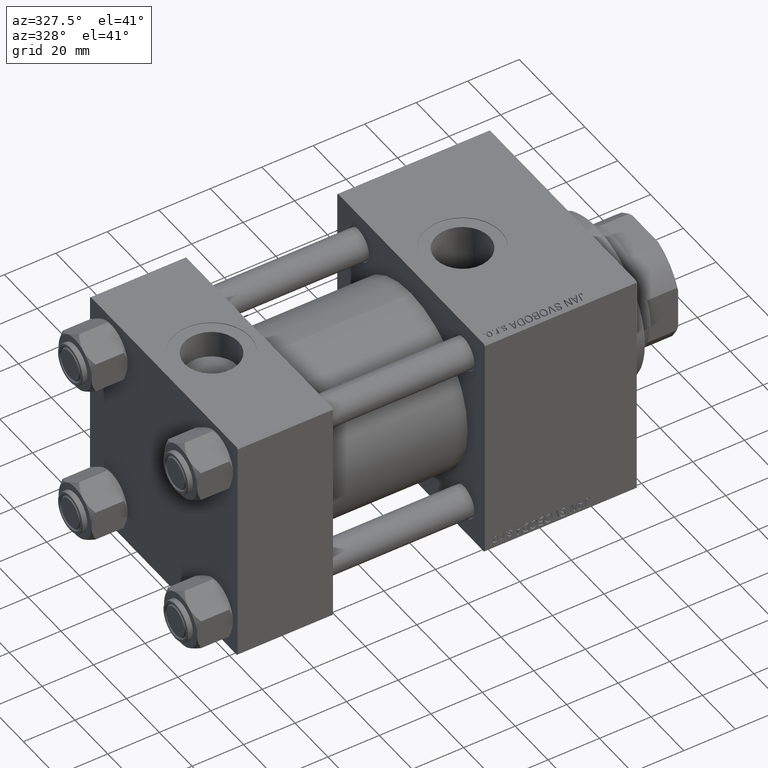
[diagram: clean part render]
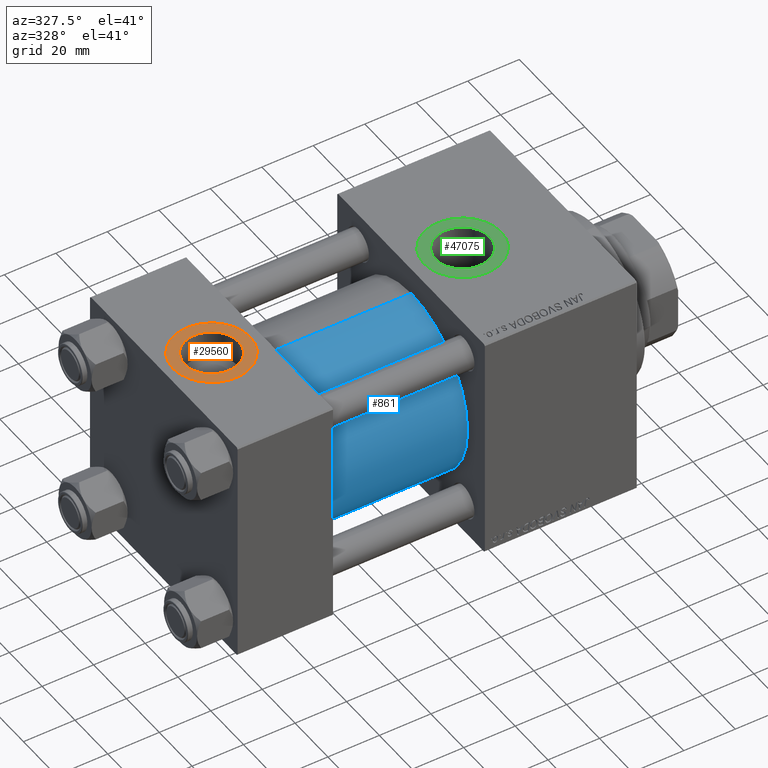
[diagram: same view with three faces highlighted in distinct colors, each labeled with its STEP entity id]
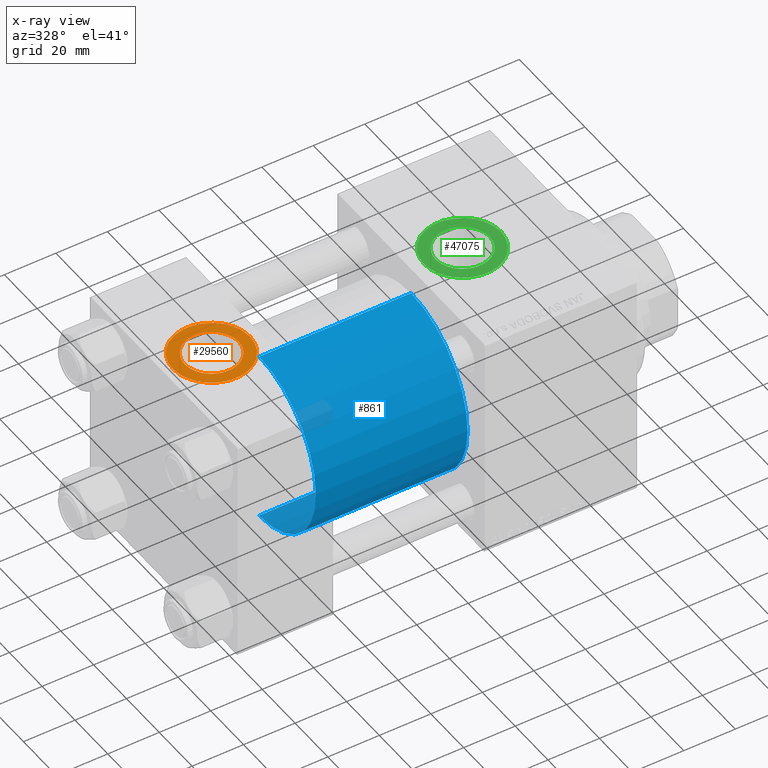
[diagram: x-ray of the same camera — body ghosted, the three highlighted faces saturated]
A machine part, auxiliary view with three faces highlighted in distinct colors.
The next image is the same camera in x-ray (body ghosted, the three faces saturated) — at least one of them is partly hidden behind the body in this view.
Their STEP definitions:

[orange] entity #29560 — the highlighted planar face has unit normal (0, 0, 1).
#1843 = VERTEX_POINT ( 'NONE', #22376 ) ;
#2243 = CIRCLE ( 'NONE', #11993, 10.48000000000000043 ) ;
#2452 = FACE_BOUND ( 'NONE', #3042, .T. ) ;
#3031 = AXIS2_PLACEMENT_3D ( 'NONE', #24351, #24098, #13412 ) ;
#3042 = EDGE_LOOP ( 'NONE', ( #24531, #12957 ) ) ;
#3199 = CIRCLE ( 'NONE', #50262, 15.00000000000000355 ) ;
#4942 = CARTESIAN_POINT ( 'NONE',  ( 8.019999999999999574, -7.390187534377611561E-15, 44.80000000000000426 ) ) ;
#10860 = DIRECTION ( 'NONE',  ( 0.000000000000000000, 0.000000000000000000, 1.000000000000000000 ) ) ;
#11094 = CARTESIAN_POINT ( 'NONE',  ( 18.50000000000000000, -8.673617379884038628E-15, 44.80000000000000426 ) ) ;
#11993 = AXIS2_PLACEMENT_3D ( 'NONE', #40691, #36887, #24679 ) ;
#12410 = CARTESIAN_POINT ( 'NONE',  ( 28.98000000000000043, -8.673617379884038628E-15, 44.80000000000000426 ) ) ;
#12957 = ORIENTED_EDGE ( 'NONE', *, *, #32043, .F. ) ;
#13412 = DIRECTION ( 'NONE',  ( 1.000000000000000000, 0.000000000000000000, 0.000000000000000000 ) ) ;
#13773 = CIRCLE ( 'NONE', #31664, 10.48000000000000043 ) ;
#16792 = DIRECTION ( 'NONE',  ( 1.000000000000000000, 0.000000000000000000, 0.000000000000000000 ) ) ;
#17968 = PLANE ( 'NONE',  #34698 ) ;
#18456 = CARTESIAN_POINT ( 'NONE',  ( 18.50000000000000000, -8.673617379884038628E-15, 44.80000000000000426 ) ) ;
#21319 = EDGE_LOOP ( 'NONE', ( #37671, #31772 ) ) ;
#22043 = DIRECTION ( 'NONE',  ( 0.000000000000000000, 0.000000000000000000, 1.000000000000000000 ) ) ;
#22376 = CARTESIAN_POINT ( 'NONE',  ( 3.499999999999997780, -6.836647181163008250E-15, 44.80000000000000426 ) ) ;
#24098 = DIRECTION ( 'NONE',  ( 0.000000000000000000, 0.000000000000000000, 1.000000000000000000 ) ) ;
#24351 = CARTESIAN_POINT ( 'NONE',  ( 18.50000000000000000, -8.673617379884038628E-15, 44.80000000000000426 ) ) ;
#24531 = ORIENTED_EDGE ( 'NONE', *, *, #40902, .F. ) ;
#24679 = DIRECTION ( 'NONE',  ( 1.000000000000000000, 0.000000000000000000, 0.000000000000000000 ) ) ;
#24966 = CIRCLE ( 'NONE', #3031, 15.00000000000000355 ) ;
#29560 = ADVANCED_FACE ( 'NONE', ( #2452, #29662 ), #17968, .T. ) ;
#29662 = FACE_OUTER_BOUND ( 'NONE', #21319, .T. ) ;
#29768 = VERTEX_POINT ( 'NONE', #4942 ) ;
#31324 = EDGE_CURVE ( 'NONE', #45863, #1843, #24966, .T. ) ;
#31664 = AXIS2_PLACEMENT_3D ( 'NONE', #11094, #10860, #41876 ) ;
#31772 = ORIENTED_EDGE ( 'NONE', *, *, #36985, .T. ) ;
#32043 = EDGE_CURVE ( 'NONE', #29768, #32331, #2243, .T. ) ;
#32331 = VERTEX_POINT ( 'NONE', #12410 ) ;
#34698 = AXIS2_PLACEMENT_3D ( 'NONE', #18456, #22043, #45171 ) ;
#36887 = DIRECTION ( 'NONE',  ( 0.000000000000000000, 0.000000000000000000, 1.000000000000000000 ) ) ;
#36985 = EDGE_CURVE ( 'NONE', #1843, #45863, #3199, .T. ) ;
#37671 = ORIENTED_EDGE ( 'NONE', *, *, #31324, .T. ) ;
#39939 = DIRECTION ( 'NONE',  ( 0.000000000000000000, 0.000000000000000000, 1.000000000000000000 ) ) ;
#40691 = CARTESIAN_POINT ( 'NONE',  ( 18.50000000000000000, -8.673617379884038628E-15, 44.80000000000000426 ) ) ;
#40902 = EDGE_CURVE ( 'NONE', #32331, #29768, #13773, .T. ) ;
#41876 = DIRECTION ( 'NONE',  ( 1.000000000000000000, 0.000000000000000000, 0.000000000000000000 ) ) ;
#45171 = DIRECTION ( 'NONE',  ( 1.000000000000000000, 0.000000000000000000, -0.000000000000000000 ) ) ;
#45863 = VERTEX_POINT ( 'NONE', #47651 ) ;
#47651 = CARTESIAN_POINT ( 'NONE',  ( 33.50000000000000000, -8.673617379884038628E-15, 44.80000000000000426 ) ) ;
#48066 = CARTESIAN_POINT ( 'NONE',  ( 18.50000000000000000, -8.673617379884038628E-15, 44.80000000000000426 ) ) ;
#50262 = AXIS2_PLACEMENT_3D ( 'NONE', #48066, #39939, #16792 ) ;

[blue] entity #861 — the highlighted cylindrical surface (partial cylindrical patch) has radius 34.5 mm, axis along (-1, -0, -0).
#589 = ORIENTED_EDGE ( 'NONE', *, *, #41305, .F. ) ;
#861 = ADVANCED_FACE ( 'NONE', ( #27349 ), #42854, .T. ) ;
#1336 = CARTESIAN_POINT ( 'NONE',  ( 96.00000000000000000, 1.622946243093158675E-15, -34.50000000000000000 ) ) ;
#4198 = DIRECTION ( 'NONE',  ( -1.000000000000000000, -0.000000000000000000, -0.000000000000000000 ) ) ;
#6103 = EDGE_CURVE ( 'NONE', #27701, #39494, #42155, .T. ) ;
#10427 = LINE ( 'NONE', #26192, #46245 ) ;
#11400 = DIRECTION ( 'NONE',  ( 1.000000000000000000, 0.000000000000000000, 0.000000000000000000 ) ) ;
#11907 = CARTESIAN_POINT ( 'NONE',  ( 96.00000000000000000, -2.602085213965210642E-15, 0.000000000000000000 ) ) ;
#13765 = EDGE_CURVE ( 'NONE', #27625, #15973, #15582, .T. ) ;
#15582 = CIRCLE ( 'NONE', #35081, 34.50000000000000000 ) ;
#15973 = VERTEX_POINT ( 'NONE', #23397 ) ;
#19367 = CARTESIAN_POINT ( 'NONE',  ( 37.00000000000000000, -2.602085213965210642E-15, 0.000000000000000000 ) ) ;
#23397 = CARTESIAN_POINT ( 'NONE',  ( 37.00000000000000000, 1.622946243093158675E-15, -34.50000000000000000 ) ) ;
#23439 = DIRECTION ( 'NONE',  ( 0.000000000000000000, 0.000000000000000000, 1.000000000000000000 ) ) ;
#23500 = AXIS2_PLACEMENT_3D ( 'NONE', #39043, #4198, #40310 ) ;
#25947 = DIRECTION ( 'NONE',  ( -1.000000000000000000, -0.000000000000000000, -0.000000000000000000 ) ) ;
#26192 = CARTESIAN_POINT ( 'NONE',  ( 96.00000000000000000, 1.622946243093158675E-15, -34.50000000000000000 ) ) ;
#27262 = DIRECTION ( 'NONE',  ( 1.000000000000000000, -0.000000000000000000, 0.000000000000000000 ) ) ;
#27349 = FACE_OUTER_BOUND ( 'NONE', #42340, .T. ) ;
#27625 = VERTEX_POINT ( 'NONE', #34185 ) ;
#27701 = VERTEX_POINT ( 'NONE', #38244 ) ;
#28055 = LINE ( 'NONE', #43561, #46104 ) ;
#30791 = AXIS2_PLACEMENT_3D ( 'NONE', #11907, #11400, #46484 ) ;
#33788 = EDGE_CURVE ( 'NONE', #27701, #27625, #28055, .T. ) ;
#34185 = CARTESIAN_POINT ( 'NONE',  ( 37.00000000000000000, -2.602085213965210642E-15, 34.50000000000000000 ) ) ;
#34922 = ORIENTED_EDGE ( 'NONE', *, *, #13765, .T. ) ;
#35081 = AXIS2_PLACEMENT_3D ( 'NONE', #19367, #27262, #23439 ) ;
#36237 = ORIENTED_EDGE ( 'NONE', *, *, #6103, .F. ) ;
#36452 = DIRECTION ( 'NONE',  ( -1.000000000000000000, -0.000000000000000000, -0.000000000000000000 ) ) ;
#38244 = CARTESIAN_POINT ( 'NONE',  ( 96.00000000000000000, -2.602085213965210642E-15, 34.50000000000000000 ) ) ;
#39043 = CARTESIAN_POINT ( 'NONE',  ( 96.00000000000000000, -2.602085213965210642E-15, 0.000000000000000000 ) ) ;
#39494 = VERTEX_POINT ( 'NONE', #1336 ) ;
#40310 = DIRECTION ( 'NONE',  ( 0.000000000000000000, 0.000000000000000000, 1.000000000000000000 ) ) ;
#41305 = EDGE_CURVE ( 'NONE', #39494, #15973, #10427, .T. ) ;
#42155 = CIRCLE ( 'NONE', #30791, 34.50000000000000000 ) ;
#42340 = EDGE_LOOP ( 'NONE', ( #589, #36237, #43587, #34922 ) ) ;
#42854 = CYLINDRICAL_SURFACE ( 'NONE', #23500, 34.50000000000000000 ) ;
#43561 = CARTESIAN_POINT ( 'NONE',  ( 96.00000000000000000, -2.602085213965210642E-15, 34.50000000000000000 ) ) ;
#43587 = ORIENTED_EDGE ( 'NONE', *, *, #33788, .T. ) ;
#46104 = VECTOR ( 'NONE', #36452, 1000.000000000000000 ) ;
#46245 = VECTOR ( 'NONE', #25947, 1000.000000000000000 ) ;
#46484 = DIRECTION ( 'NONE',  ( 0.000000000000000000, 0.000000000000000000, -1.000000000000000000 ) ) ;

[green] entity #47075 — the highlighted planar face has unit normal (0, 0, 1).
#8060 = DIRECTION ( 'NONE',  ( 0.000000000000000000, 0.000000000000000000, 1.000000000000000000 ) ) ;
#9022 = DIRECTION ( 'NONE',  ( -0.000000000000000000, -0.000000000000000000, -1.000000000000000000 ) ) ;
#9170 = AXIS2_PLACEMENT_3D ( 'NONE', #11892, #8060, #23330 ) ;
#11399 = CARTESIAN_POINT ( 'NONE',  ( 126.4800000000000040, -5.655464058400802100E-15, 44.79999999999999005 ) ) ;
#11892 = CARTESIAN_POINT ( 'NONE',  ( 116.0000000000000000, -6.938893903907227589E-15, 44.79999999999999005 ) ) ;
#14445 = DIRECTION ( 'NONE',  ( 0.000000000000000000, 0.000000000000000000, 1.000000000000000000 ) ) ;
#14912 = VERTEX_POINT ( 'NONE', #26638 ) ;
#17159 = DIRECTION ( 'NONE',  ( 1.000000000000000000, 0.000000000000000000, 0.000000000000000000 ) ) ;
#18403 = ORIENTED_EDGE ( 'NONE', *, *, #18789, .T. ) ;
#18789 = EDGE_CURVE ( 'NONE', #39535, #14912, #46506, .T. ) ;
#22314 = EDGE_CURVE ( 'NONE', #14912, #39535, #43393, .T. ) ;
#22651 = CARTESIAN_POINT ( 'NONE',  ( 116.0000000000000000, -6.938893903907227589E-15, 44.79999999999999005 ) ) ;
#23330 = DIRECTION ( 'NONE',  ( 1.000000000000000000, 0.000000000000000000, 0.000000000000000000 ) ) ;
#23452 = AXIS2_PLACEMENT_3D ( 'NONE', #43858, #9022, #17159 ) ;
#26230 = DIRECTION ( 'NONE',  ( 0.000000000000000000, 0.000000000000000000, 1.000000000000000000 ) ) ;
#26499 = EDGE_LOOP ( 'NONE', ( #38273, #45071 ) ) ;
#26638 = CARTESIAN_POINT ( 'NONE',  ( 100.9999999999999858, -5.101923705186196422E-15, 44.79999999999999005 ) ) ;
#29030 = FACE_BOUND ( 'NONE', #26499, .T. ) ;
#29951 = DIRECTION ( 'NONE',  ( 1.000000000000000000, 0.000000000000000000, 0.000000000000000000 ) ) ;
#33108 = FACE_OUTER_BOUND ( 'NONE', #34666, .T. ) ;
#33610 = CARTESIAN_POINT ( 'NONE',  ( 116.0000000000000000, -6.938893903907227589E-15, 44.79999999999999005 ) ) ;
#34666 = EDGE_LOOP ( 'NONE', ( #18403, #43328 ) ) ;
#35110 = CIRCLE ( 'NONE', #38378, 10.48000000000000398 ) ;
#35333 = EDGE_CURVE ( 'NONE', #49561, #38927, #46206, .T. ) ;
#36110 = AXIS2_PLACEMENT_3D ( 'NONE', #37845, #14445, #29951 ) ;
#36571 = CARTESIAN_POINT ( 'NONE',  ( 105.5199999999999960, -6.938893903907227589E-15, 44.79999999999999005 ) ) ;
#37845 = CARTESIAN_POINT ( 'NONE',  ( 116.0000000000000000, -6.938893903907227589E-15, 44.79999999999999005 ) ) ;
#38164 = DIRECTION ( 'NONE',  ( -0.000000000000000000, -0.000000000000000000, -1.000000000000000000 ) ) ;
#38273 = ORIENTED_EDGE ( 'NONE', *, *, #48197, .T. ) ;
#38378 = AXIS2_PLACEMENT_3D ( 'NONE', #33610, #38164, #49596 ) ;
#38927 = VERTEX_POINT ( 'NONE', #36571 ) ;
#39535 = VERTEX_POINT ( 'NONE', #47369 ) ;
#43199 = AXIS2_PLACEMENT_3D ( 'NONE', #22651, #26230, #45301 ) ;
#43328 = ORIENTED_EDGE ( 'NONE', *, *, #22314, .T. ) ;
#43393 = CIRCLE ( 'NONE', #36110, 15.00000000000000000 ) ;
#43858 = CARTESIAN_POINT ( 'NONE',  ( 116.0000000000000000, -6.938893903907227589E-15, 44.79999999999999005 ) ) ;
#45071 = ORIENTED_EDGE ( 'NONE', *, *, #35333, .T. ) ;
#45301 = DIRECTION ( 'NONE',  ( 1.000000000000000000, 0.000000000000000000, -0.000000000000000000 ) ) ;
#46206 = CIRCLE ( 'NONE', #23452, 10.48000000000000398 ) ;
#46506 = CIRCLE ( 'NONE', #9170, 15.00000000000000000 ) ;
#47075 = ADVANCED_FACE ( 'NONE', ( #29030, #33108 ), #48603, .T. ) ;
#47369 = CARTESIAN_POINT ( 'NONE',  ( 131.0000000000000000, -6.938893903907227589E-15, 44.79999999999999005 ) ) ;
#48197 = EDGE_CURVE ( 'NONE', #38927, #49561, #35110, .T. ) ;
#48603 = PLANE ( 'NONE',  #43199 ) ;
#49561 = VERTEX_POINT ( 'NONE', #11399 ) ;
#49596 = DIRECTION ( 'NONE',  ( 1.000000000000000000, 0.000000000000000000, 0.000000000000000000 ) ) ;